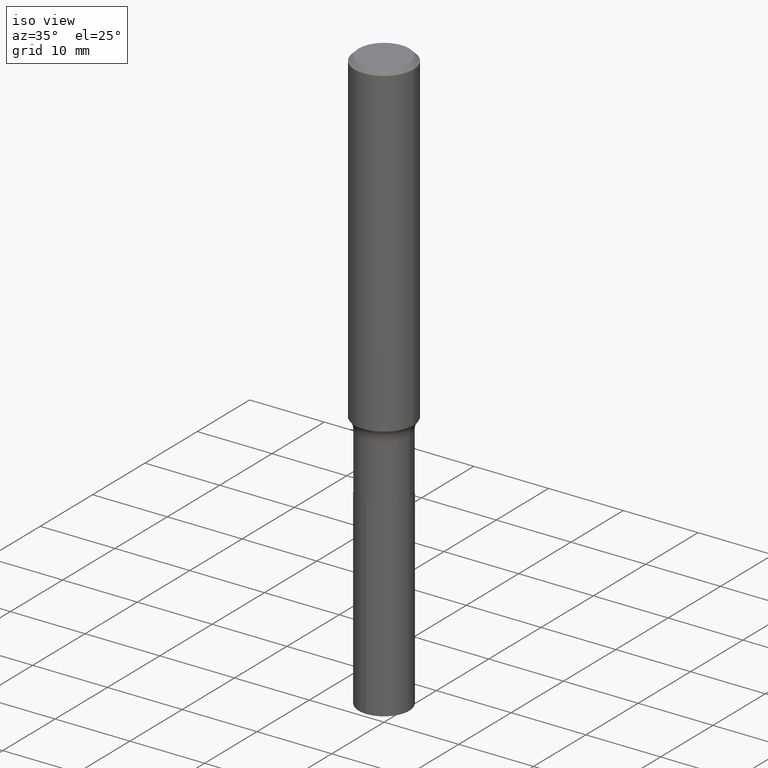
[diagram: clean part render]
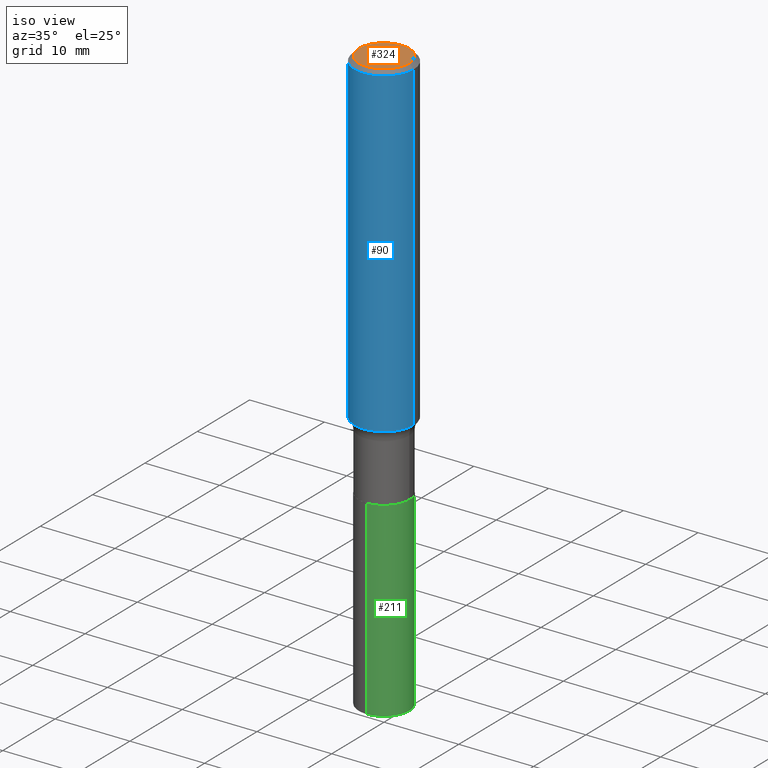
[diagram: same view with three faces highlighted in distinct colors, each labeled with its STEP entity id]
A machine part, iso view with three faces highlighted in distinct colors.
Their STEP definitions:

[orange] entity #324 — the highlighted planar face has unit normal (0, -0, -1).
#19 = ORIENTED_EDGE ( 'NONE', *, *, #389, .T. ) ;
#27 = DIRECTION ( 'NONE',  ( 1.000000000000000000, -6.982962677686268288E-15, 4.876286914311434227E-29 ) ) ;
#63 = AXIS2_PLACEMENT_3D ( 'NONE', #102, #300, #219 ) ;
#71 = CIRCLE ( 'NONE', #225, 0.1328125000000000000 ) ;
#102 = CARTESIAN_POINT ( 'NONE',  ( -7.955031918821654702E-47, 1.135767727816384474E-32, 3.252968060235159383E-18 ) ) ;
#110 = DIRECTION ( 'NONE',  ( 2.438088387897960049E-29, -3.491481338843145188E-15, -1.000000000000000000 ) ) ;
#133 = PLANE ( 'NONE',  #181 ) ;
#149 = CARTESIAN_POINT ( 'NONE',  ( -3.977515959410827351E-47, 5.678838639081922371E-33, 1.626484030117579692E-18 ) ) ;
#167 = DIRECTION ( 'NONE',  ( -2.445468806185136597E-29, 3.491481338843145583E-15, 1.000000000000000000 ) ) ;
#177 = DIRECTION ( 'NONE',  ( -1.000000000000000000, 6.982962677686265922E-15, -4.876176775795935793E-29 ) ) ;
#181 = AXIS2_PLACEMENT_3D ( 'NONE', #149, #110, #177 ) ;
#182 = VERTEX_POINT ( 'NONE', #466 ) ;
#219 = DIRECTION ( 'NONE',  ( 1.000000000000000000, -6.982962677686268288E-15, 4.876286914311434227E-29 ) ) ;
#225 = AXIS2_PLACEMENT_3D ( 'NONE', #358, #167, #27 ) ;
#242 = CIRCLE ( 'NONE', #63, 0.1328125000000000000 ) ;
#278 = EDGE_CURVE ( 'NONE', #368, #182, #71, .T. ) ;
#293 = CARTESIAN_POINT ( 'NONE',  ( 0.1328125000000000000, -1.032472148179985084E-15, 3.252968060242011842E-18 ) ) ;
#300 = DIRECTION ( 'NONE',  ( -2.445468806185136597E-29, 3.491481338843145583E-15, 1.000000000000000000 ) ) ;
#311 = EDGE_LOOP ( 'NONE', ( #19, #392 ) ) ;
#324 = ADVANCED_FACE ( 'NONE', ( #370 ), #133, .F. ) ;
#358 = CARTESIAN_POINT ( 'NONE',  ( -7.955031918821654702E-47, 1.135767727816384474E-32, 3.252968060235159383E-18 ) ) ;
#368 = VERTEX_POINT ( 'NONE', #293 ) ;
#370 = FACE_OUTER_BOUND ( 'NONE', #311, .T. ) ;
#389 = EDGE_CURVE ( 'NONE', #182, #368, #242, .T. ) ;
#392 = ORIENTED_EDGE ( 'NONE', *, *, #278, .T. ) ;
#466 = CARTESIAN_POINT ( 'NONE',  ( -0.1328125000000000000, 9.683405275697749214E-16, 3.252968060228530332E-18 ) ) ;

[blue] entity #90 — the highlighted cylindrical surface (edge-blend (fillet) strip) has radius 3.9688 mm, axis along (-0, 0, 1).
#1 = CARTESIAN_POINT ( 'NONE',  ( 4.198978237127225302E-29, -5.995028078075716865E-15, -1.717044284722451630 ) ) ;
#4 = DIRECTION ( 'NONE',  ( 1.000000000000000000, -6.982962677686265922E-15, 0.000000000000000000 ) ) ;
#6 = EDGE_CURVE ( 'NONE', #360, #139, #62, .T. ) ;
#28 = AXIS2_PLACEMENT_3D ( 'NONE', #1, #280, #4 ) ;
#59 = VERTEX_POINT ( 'NONE', #375 ) ;
#62 = CIRCLE ( 'NONE', #362, 0.1562500000000000000 ) ;
#90 = ADVANCED_FACE ( 'NONE', ( #335 ), #120, .T. ) ;
#107 = EDGE_LOOP ( 'NONE', ( #212, #403, #292, #252 ) ) ;
#111 = AXIS2_PLACEMENT_3D ( 'NONE', #337, #297, #417 ) ;
#120 = CYLINDRICAL_SURFACE ( 'NONE', #111, 0.1562500000000001110 ) ;
#124 = DIRECTION ( 'NONE',  ( -2.445468806185136877E-29, 3.491481338843145188E-15, 1.000000000000000000 ) ) ;
#139 = VERTEX_POINT ( 'NONE', #419 ) ;
#142 = VECTOR ( 'NONE', #394, 39.37007874015748143 ) ;
#148 = DIRECTION ( 'NONE',  ( -2.445468806185136597E-29, 3.491481338843145583E-15, 1.000000000000000000 ) ) ;
#165 = CARTESIAN_POINT ( 'NONE',  ( -0.1562500000000001110, 1.110223024625157329E-15, -7.685836078523295364E-30 ) ) ;
#208 = EDGE_CURVE ( 'NONE', #59, #448, #248, .T. ) ;
#210 = CARTESIAN_POINT ( 'NONE',  ( -0.1562500000000000000, -1.928206811352268530E-15, -0.02343750000000014225 ) ) ;
#212 = ORIENTED_EDGE ( 'NONE', *, *, #240, .F. ) ;
#234 = CARTESIAN_POINT ( 'NONE',  ( 0.1562500000000001110, -1.091087918388479962E-15, 7.619026212181155982E-30 ) ) ;
#240 = EDGE_CURVE ( 'NONE', #59, #360, #461, .T. ) ;
#248 = CIRCLE ( 'NONE', #28, 0.1562500000000002220 ) ;
#252 = ORIENTED_EDGE ( 'NONE', *, *, #6, .F. ) ;
#258 = EDGE_CURVE ( 'NONE', #448, #139, #459, .T. ) ;
#262 = CARTESIAN_POINT ( 'NONE',  ( 0.1562500000000002498, -7.086115996464197617E-15, -1.717044284722451630 ) ) ;
#280 = DIRECTION ( 'NONE',  ( -2.445468806185136597E-29, 3.491481338843145583E-15, 1.000000000000000000 ) ) ;
#290 = VECTOR ( 'NONE', #124, 39.37007874015748143 ) ;
#292 = ORIENTED_EDGE ( 'NONE', *, *, #258, .T. ) ;
#297 = DIRECTION ( 'NONE',  ( -2.445468806185136597E-29, 3.491481338843145583E-15, 1.000000000000000000 ) ) ;
#302 = CARTESIAN_POINT ( 'NONE',  ( 5.731567514496448931E-31, -8.183159387913672688E-17, -0.02343750000000014225 ) ) ;
#335 = FACE_OUTER_BOUND ( 'NONE', #107, .T. ) ;
#337 = CARTESIAN_POINT ( 'NONE',  ( 0.000000000000000000, 0.000000000000000000, 0.000000000000000000 ) ) ;
#360 = VERTEX_POINT ( 'NONE', #210 ) ;
#362 = AXIS2_PLACEMENT_3D ( 'NONE', #302, #148, #383 ) ;
#375 = CARTESIAN_POINT ( 'NONE',  ( -0.1562500000000002498, -4.884805053450557958E-15, -1.717044284722451630 ) ) ;
#383 = DIRECTION ( 'NONE',  ( 1.000000000000000000, -6.982962677686266711E-15, 0.000000000000000000 ) ) ;
#394 = DIRECTION ( 'NONE',  ( -2.445468806185136877E-29, 3.491481338843145188E-15, 1.000000000000000000 ) ) ;
#403 = ORIENTED_EDGE ( 'NONE', *, *, #208, .T. ) ;
#417 = DIRECTION ( 'NONE',  ( 1.000000000000000000, -6.982962677686266711E-15, 4.876176775795936353E-29 ) ) ;
#419 = CARTESIAN_POINT ( 'NONE',  ( 0.1562500000000000000, -1.172919512267615999E-15, -0.02343750000000014225 ) ) ;
#448 = VERTEX_POINT ( 'NONE', #262 ) ;
#459 = LINE ( 'NONE', #234, #142 ) ;
#461 = LINE ( 'NONE', #165, #290 ) ;

[green] entity #211 — the highlighted cylindrical surface (edge-blend (fillet) strip) has radius 3.3782 mm, axis along (-0, 0, 1).
#7 = LINE ( 'NONE', #467, #10 ) ;
#10 = VECTOR ( 'NONE', #274, 39.37007874015748143 ) ;
#34 = DIRECTION ( 'NONE',  ( -2.445397776854070034E-29, 3.491583056887971408E-15, 1.000000000000000000 ) ) ;
#38 = VERTEX_POINT ( 'NONE', #226 ) ;
#76 = CARTESIAN_POINT ( 'NONE',  ( 7.539468569803454175E-29, -1.076456700790748911E-14, -3.083065261079095176 ) ) ;
#94 = CARTESIAN_POINT ( 'NONE',  ( 5.082906913655807152E-29, -7.257043962785479847E-15, -2.078500000000000458 ) ) ;
#98 = EDGE_LOOP ( 'NONE', ( #485, #321, #462, #405 ) ) ;
#100 = VERTEX_POINT ( 'NONE', #341 ) ;
#105 = CARTESIAN_POINT ( 'NONE',  ( 9.450218385610086339E-16, 0.1329999999999927351, -2.078500000000000902 ) ) ;
#106 = EDGE_CURVE ( 'NONE', #100, #38, #299, .T. ) ;
#117 = DIRECTION ( 'NONE',  ( -6.982962677686265922E-15, -1.000000000000000000, 4.108042095735734288E-15 ) ) ;
#135 = AXIS2_PLACEMENT_3D ( 'NONE', #422, #34, #117 ) ;
#137 = EDGE_CURVE ( 'NONE', #284, #328, #241, .T. ) ;
#185 = EDGE_CURVE ( 'NONE', #38, #328, #7, .T. ) ;
#211 = ADVANCED_FACE ( 'NONE', ( #271 ), #387, .T. ) ;
#220 = DIRECTION ( 'NONE',  ( -6.982962677686265922E-15, -1.000000000000000000, 4.108042095735734288E-15 ) ) ;
#226 = CARTESIAN_POINT ( 'NONE',  ( 9.450218385610088311E-16, 0.1329999999999892657, -3.083065261079096064 ) ) ;
#241 = CIRCLE ( 'NONE', #135, 0.1330000000000000071 ) ;
#256 = CARTESIAN_POINT ( 'NONE',  ( -9.287340361322225436E-16, -0.1330000000000072513, -2.078499999999999570 ) ) ;
#265 = AXIS2_PLACEMENT_3D ( 'NONE', #76, #452, #220 ) ;
#271 = FACE_OUTER_BOUND ( 'NONE', #98, .T. ) ;
#274 = DIRECTION ( 'NONE',  ( -2.445397776854070034E-29, 3.491583056887971803E-15, 1.000000000000000000 ) ) ;
#284 = VERTEX_POINT ( 'NONE', #256 ) ;
#288 = EDGE_CURVE ( 'NONE', #100, #284, #445, .T. ) ;
#296 = CARTESIAN_POINT ( 'NONE',  ( -9.287340361322225436E-16, -0.1330000000000072513, -2.078499999999999570 ) ) ;
#299 = CIRCLE ( 'NONE', #265, 0.1330000000000000071 ) ;
#321 = ORIENTED_EDGE ( 'NONE', *, *, #185, .T. ) ;
#328 = VERTEX_POINT ( 'NONE', #105 ) ;
#341 = CARTESIAN_POINT ( 'NONE',  ( -9.287340361321982862E-16, -0.1330000000000108040, -3.083065261079094732 ) ) ;
#365 = VECTOR ( 'NONE', #399, 39.37007874015748143 ) ;
#372 = AXIS2_PLACEMENT_3D ( 'NONE', #94, #396, #424 ) ;
#387 = CYLINDRICAL_SURFACE ( 'NONE', #372, 0.1330000000000000071 ) ;
#396 = DIRECTION ( 'NONE',  ( -2.445397776854070034E-29, 3.491583056887971408E-15, 1.000000000000000000 ) ) ;
#399 = DIRECTION ( 'NONE',  ( -2.445397776854070034E-29, 3.491583056887971803E-15, 1.000000000000000000 ) ) ;
#405 = ORIENTED_EDGE ( 'NONE', *, *, #288, .F. ) ;
#422 = CARTESIAN_POINT ( 'NONE',  ( 5.082906913655807152E-29, -7.257043962785479847E-15, -2.078500000000000458 ) ) ;
#424 = DIRECTION ( 'NONE',  ( -6.982962677686265922E-15, -1.000000000000000000, 4.108042095735734288E-15 ) ) ;
#445 = LINE ( 'NONE', #296, #365 ) ;
#452 = DIRECTION ( 'NONE',  ( -2.445397776854070034E-29, 3.491583056887971408E-15, 1.000000000000000000 ) ) ;
#462 = ORIENTED_EDGE ( 'NONE', *, *, #137, .F. ) ;
#467 = CARTESIAN_POINT ( 'NONE',  ( 9.450218385609839820E-16, 0.1329999999999927351, -2.078500000000000902 ) ) ;
#485 = ORIENTED_EDGE ( 'NONE', *, *, #106, .T. ) ;